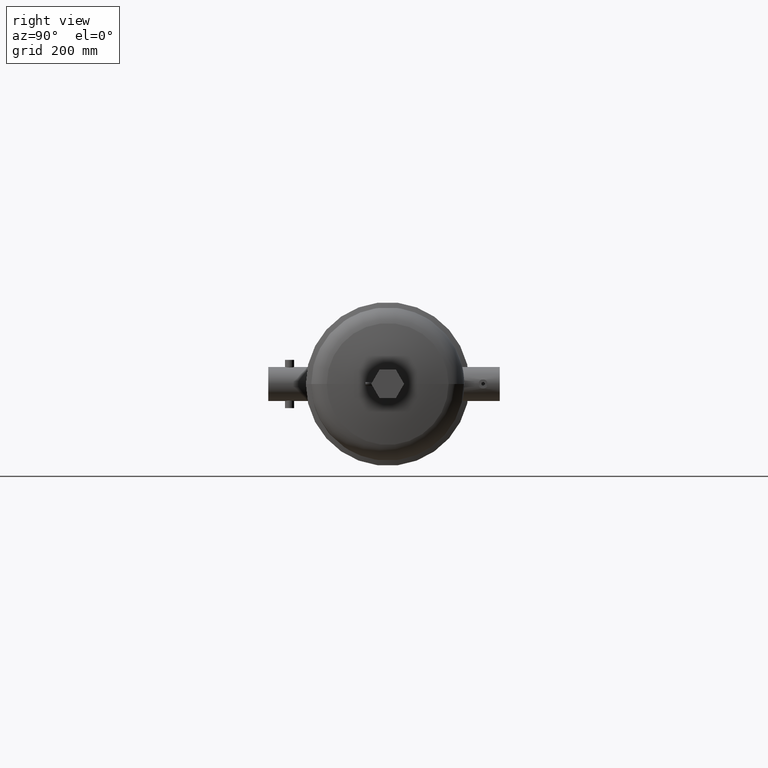
[diagram: clean part render]
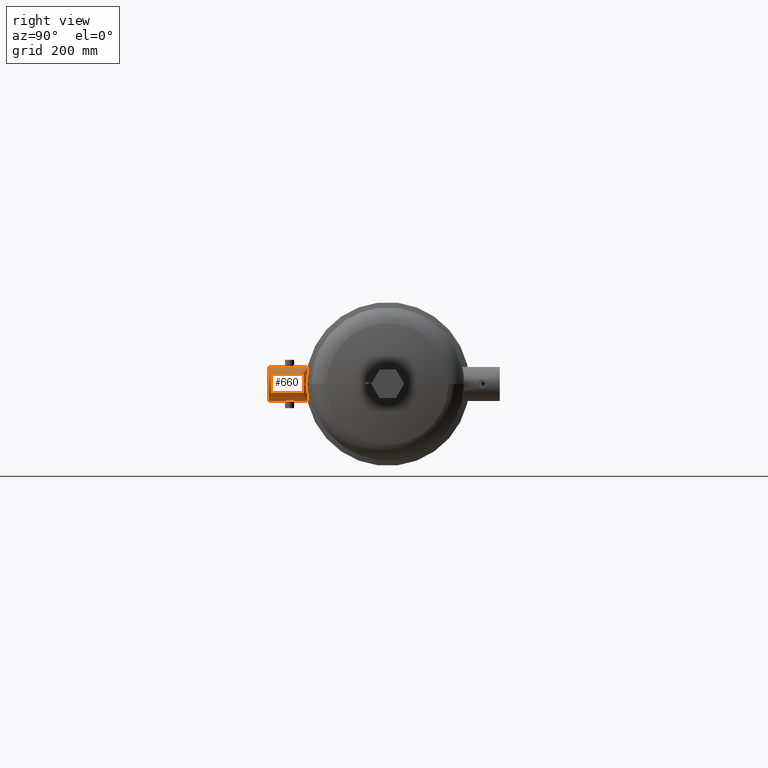
[diagram: same view with one face highlighted and labeled with its STEP entity id]
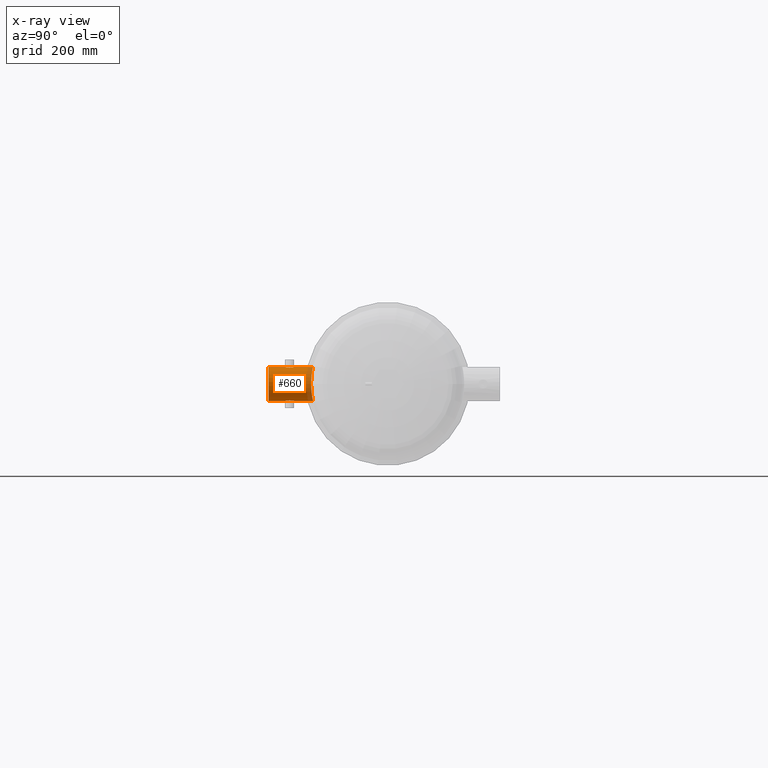
[diagram: x-ray of the same camera — body ghosted, the highlighted face saturated]
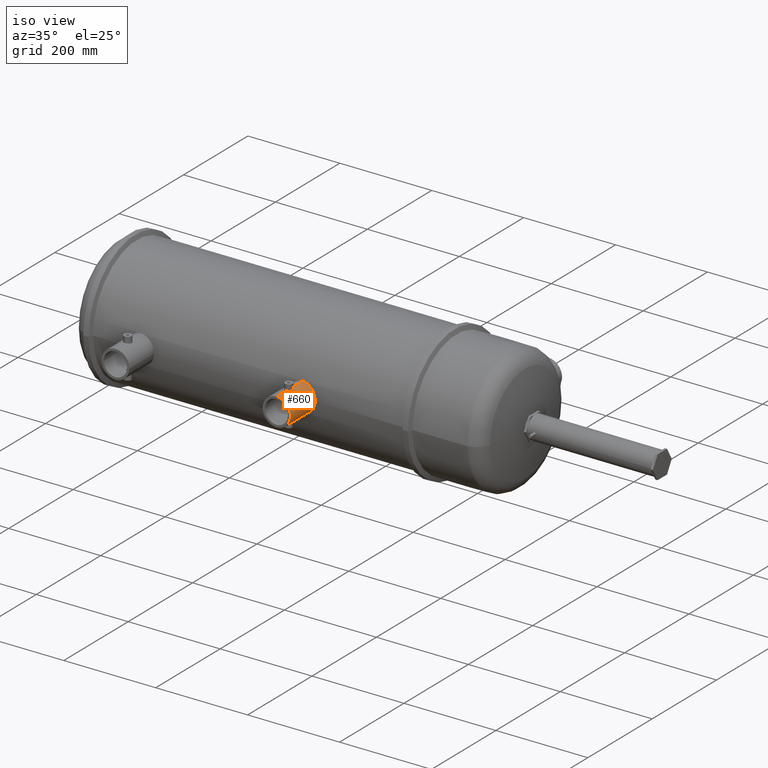
[diagram: same view with one face highlighted and labeled with its STEP entity id]
A machine part, right view. The second image highlights one B-rep face of the part: STEP entity #660.
The next image is the same camera in x-ray: the body ghosted, the highlighted face saturated — about 11% of this face is hidden behind the body in this view.
A second angle (iso view) of the same face is appended — the face is thin or edge-on in the first view.
In plain terms, the highlighted cylindrical surface (edge-blend (fillet) strip) has radius 30.4 mm, axis along (-0, 1, -0).
Its self-contained STEP definition (entity closure, byte-faithful):
#18 = CARTESIAN_POINT ( 'NONE',  ( 20.30267497385542400, -5.234978669850942600, -1.189228997308080100 ) ) ;
#20 = CARTESIAN_POINT ( 'NONE',  ( 20.14646178023718900, -8.380000000000000800, -1.196850393700786800 ) ) ;
#57 = CARTESIAN_POINT ( 'NONE',  ( 20.23034213481459200, -6.568557721539487000, -1.194086903295467700 ) ) ;
#63 = B_SPLINE_CURVE_WITH_KNOTS ( 'NONE', 3,
 ( #3464, #1203, #4359, #4377, #3050, #716, #4898, #899, #1264, #4960, #4871, #5339, #2632, #5804, #3092, #5366, #399, #5387, #857, #4445, #3549, #4035, #1742, #2195 ),
 .UNSPECIFIED., .F., .F.,
 ( 4, 2, 2, 2, 2, 2, 2, 2, 2, 2, 2, 4 ),
 ( 0.02567718149975968900, 0.02728178340706103500, 0.02888638531436238400, 0.02968868626801305900, 0.03049098722166373300, 0.03209558912896496400, 0.03289789008261558000, 0.03370019103626620300, 0.03530479294356771200, 0.03690939485086921400, 0.03771169580451996100, 0.03851399675817070900 ),
 .UNSPECIFIED. ) ;
#95 = CARTESIAN_POINT ( 'NONE',  ( 20.46412916512038600, -6.827208400453592700, -1.153925009145352600 ) ) ;
#166 = DIRECTION ( 'NONE',  ( 0.0000000000000000000, 0.0000000000000000000, 1.000000000000000000 ) ) ;
#208 = CARTESIAN_POINT ( 'NONE',  ( 21.11861795262816700, -5.322680822778227000, 0.6983892442578063500 ) ) ;
#255 = CARTESIAN_POINT ( 'NONE',  ( 20.28957382872573600, -7.169052661135340000, 1.188424619474727000 ) ) ;
#265 = CARTESIAN_POINT ( 'NONE',  ( 20.43503884487746800, -6.737096094357215600, 1.161550829749654800 ) ) ;
#270 = CARTESIAN_POINT ( 'NONE',  ( 20.42574505096249700, -7.041357026553663800, 1.163871702754222500 ) ) ;
#324 = CARTESIAN_POINT ( 'NONE',  ( 20.38138088876072400, -6.659746847423960500, 1.173593366233573100 ) ) ;
#340 = CARTESIAN_POINT ( 'NONE',  ( 20.28926239001419400, -6.590798586748317900, 1.188461090311276700 ) ) ;
#399 = CARTESIAN_POINT ( 'NONE',  ( 20.28963624669337300, -7.169032268674192700, -1.188419336677621900 ) ) ;
#417 = EDGE_CURVE ( 'NONE', #3520, #3433, #914, .T. ) ;
#418 = CARTESIAN_POINT ( 'NONE',  ( 21.13042735282109100, -5.324850754475957800, -0.6816483619526521000 ) ) ;
#419 = VERTEX_POINT ( 'NONE', #847 ) ;
#430 = ORIENTED_EDGE ( 'NONE', *, *, #1953, .T. ) ;
#434 = CARTESIAN_POINT ( 'NONE',  ( 20.87717697342599600, -5.283556944324895500, -0.9511561901910999800 ) ) ;
#455 = CARTESIAN_POINT ( 'NONE',  ( 20.41869885264316100, -5.240255615862095900, -1.165645067144453200 ) ) ;
#464 = B_SPLINE_CURVE_WITH_KNOTS ( 'NONE', 3,
 ( #1422, #4079, #4526, #57, #3649, #4116, #943, #3237, #5043, #5473, #1404, #976, #4101, #4556, #1384, #1839, #5007, #5506, #1861, #95, #526, #3161, #4131, #4577 ),
 .UNSPECIFIED., .F., .F.,
 ( 4, 2, 2, 2, 2, 2, 2, 2, 2, 2, 2, 4 ),
 ( 0.01284200239088143800, 0.01444639977949086600, 0.01605079716810029300, 0.01685299586240516000, 0.01765519455671002400, 0.01845739325101489200, 0.01925959194531975600, 0.02086398933392977600, 0.02246838672253979500, 0.02407278411114981800, 0.02487498280545475200, 0.02567718149975968900 ),
 .UNSPECIFIED. ) ;
#526 = CARTESIAN_POINT ( 'NONE',  ( 20.46571117224566900, -6.837809063221903300, -1.153486827789330200 ) ) ;
#584 = CARTESIAN_POINT ( 'NONE',  ( 20.45644482302516900, -5.242249987839469000, 1.156686122263862200 ) ) ;
#600 = CARTESIAN_POINT ( 'NONE',  ( 21.22148006781654000, -5.342344859803780800, 0.5318484861100810600 ) ) ;
#604 = B_SPLINE_CURVE_WITH_KNOTS ( 'NONE', 3,
 ( #2949, #3532, #818, #3985, #3492, #1266, #4900, #5370, #2656, #5829, #3119, #418, #1768, #4923, #2219, #5390, #783, #2692, #434, #883, #3592, #4041, #2239, #1790, #1341, #4060, #4491, #4945, #1323, #455, #5410, #18, #3157, #3612 ),
 .UNSPECIFIED., .F., .F.,
 ( 4, 2, 2, 2, 2, 2, 2, 2, 2, 2, 2, 2, 2, 2, 2, 2, 4 ),
 ( 0.0000000000000000000, 0.005960542230142185800, 0.008940813345213278700, 0.01043094890274887300, 0.01192108446028446700, 0.01788162669042668900, 0.01937176224796216200, 0.02086189780549763500, 0.02384216892056879900, 0.02980271115071111600, 0.03129284670824676600, 0.03278298226578241200, 0.03576325338085398200, 0.03874352449592555900, 0.04023366005346150400, 0.04172379561099744800, 0.04768433784114122600 ),
 .UNSPECIFIED. ) ;
#620 = CARTESIAN_POINT ( 'NONE',  ( 21.01989743351668600, -5.305492023519797800, 0.8191888919053246200 ) ) ;
#639 = EDGE_CURVE ( 'NONE', #4352, #768, #2416, .T. ) ;
#660 = ADVANCED_FACE ( 'NONE', ( #2224 ), #4833, .T. ) ;
#664 = CARTESIAN_POINT ( 'NONE',  ( 20.16783905554524400, -7.201850393700789600, 1.196850393700786200 ) ) ;
#702 = CARTESIAN_POINT ( 'NONE',  ( 20.15699155481434300, -6.558149606299212000, 1.196850393700786800 ) ) ;
#716 = CARTESIAN_POINT ( 'NONE',  ( 20.43967863885932300, -7.013122939632118000, -1.160384421762383800 ) ) ;
#724 = CARTESIAN_POINT ( 'NONE',  ( 20.25043642003168600, -6.574682549042706500, 1.192485241676455500 ) ) ;
#746 = CARTESIAN_POINT ( 'NONE',  ( 20.40183095878811400, -6.683825620592221700, 1.169309119435434600 ) ) ;
#766 = CARTESIAN_POINT ( 'NONE',  ( 21.34331217393797400, -5.368251035232424900, 0.0000000000000000000 ) ) ;
#767 = CARTESIAN_POINT ( 'NONE',  ( 20.16753543008093500, -6.558665062731043000, 1.196711461262761000 ) ) ;
#768 = VERTEX_POINT ( 'NONE', #766 ) ;
#783 = CARTESIAN_POINT ( 'NONE',  ( 21.01989131365047600, -5.305490786052706300, -0.8191983656207001400 ) ) ;
#818 = CARTESIAN_POINT ( 'NONE',  ( 21.33549608641648000, -5.366494215406592400, -0.1573589102271542600 ) ) ;
#837 = EDGE_CURVE ( 'NONE', #768, #4770, #604, .T. ) ;
#847 = CARTESIAN_POINT ( 'NONE',  ( 20.14646178023718900, -8.380000000000000800, 1.196850393700786800 ) ) ;
#857 = CARTESIAN_POINT ( 'NONE',  ( 20.23021388395153500, -7.191472468845994100, -1.194094832357367900 ) ) ;
#883 = CARTESIAN_POINT ( 'NONE',  ( 20.79541310023561700, -5.273251761401556200, -1.005833010294777500 ) ) ;
#891 = DIRECTION ( 'NONE',  ( -0.0000000000000000000, 1.000000000000000000, -0.0000000000000000000 ) ) ;
#899 = CARTESIAN_POINT ( 'NONE',  ( 20.42519428929582800, -7.041268778481408800, -1.163952509977382200 ) ) ;
#914 = B_SPLINE_CURVE_WITH_KNOTS ( 'NONE', 3,
 ( #5184, #664, #1544, #4694, #5624, #4275, #2916, #255, #3380, #1567, #3394, #1136, #4293, #4739, #2957, #270, #3414, #3104, #5734, #4863, #3518, #5754, #5270, #3043 ),
 .UNSPECIFIED., .F., .F.,
 ( 4, 2, 2, 2, 2, 2, 2, 2, 2, 2, 2, 4 ),
 ( 0.0000000000000000000, 0.001605282314302298400, 0.002407923471453602000, 0.003210564628604905900, 0.004815846942907818200, 0.005618488100059298100, 0.006421129257210777200, 0.008026411571514026000, 0.009631693885817272200, 0.01043433504296885900, 0.01123697620012044400, 0.01284225851442361400 ),
 .UNSPECIFIED. ) ;
#943 = CARTESIAN_POINT ( 'NONE',  ( 20.28938133846733300, -6.591430580348284000, -1.188323261585958000 ) ) ;
#947 = CARTESIAN_POINT ( 'NONE',  ( 20.56892737537739200, -5.250200187789792100, 1.119982121431812600 ) ) ;
#976 = CARTESIAN_POINT ( 'NONE',  ( 20.35887925180344400, -6.637973893793787100, -1.177878353501536700 ) ) ;
#981 = CARTESIAN_POINT ( 'NONE',  ( 20.30324904070974100, -5.235004604428955800, 1.189113119929174900 ) ) ;
#1049 = EDGE_LOOP ( 'NONE', ( #430, #5271, #3982, #3508, #4022, #2766, #3172, #5570, #1864, #4223, #1738 ) ) ;
#1052 = CARTESIAN_POINT ( 'NONE',  ( 21.30222816600492000, -5.359244614724526700, 0.3115207655409570300 ) ) ;
#1099 = CARTESIAN_POINT ( 'NONE',  ( 20.14646178023718900, -7.201850393700788700, -1.196850393700786800 ) ) ;
#1109 = CARTESIAN_POINT ( 'NONE',  ( 21.34331217393797100, -5.368251035232424900, 0.07930491497186011000 ) ) ;
#1136 = CARTESIAN_POINT ( 'NONE',  ( 20.35902720400813600, -7.121898220304158800, 1.177851899791539300 ) ) ;
#1149 = EDGE_CURVE ( 'NONE', #4206, #1450, #63, .T. ) ;
#1160 = DIRECTION ( 'NONE',  ( -0.0000000000000000000, 1.000000000000000000, -0.0000000000000000000 ) ) ;
#1171 = CARTESIAN_POINT ( 'NONE',  ( 20.42509560516276000, -6.718564439816671700, 1.163976049554222400 ) ) ;
#1203 = CARTESIAN_POINT ( 'NONE',  ( 20.46831217393797800, -6.901061815007571100, -1.152763284016443700 ) ) ;
#1264 = CARTESIAN_POINT ( 'NONE',  ( 20.41972583356871200, -7.050366030398415700, -1.165252555601107300 ) ) ;
#1266 = CARTESIAN_POINT ( 'NONE',  ( 21.28585846822836900, -5.355739564668230200, -0.3668973219569238200 ) ) ;
#1323 = CARTESIAN_POINT ( 'NONE',  ( 20.45703563367988000, -5.242385681921823500, -1.156021335317012600 ) ) ;
#1341 = CARTESIAN_POINT ( 'NONE',  ( 20.64106441455124900, -5.256402689435967400, -1.090567589013728100 ) ) ;
#1384 = CARTESIAN_POINT ( 'NONE',  ( 20.40229006015351500, -6.683588580835066600, -1.169249909877855500 ) ) ;
#1404 = CARTESIAN_POINT ( 'NONE',  ( 20.34266083982619800, -6.624649755574172800, -1.180688158190163200 ) ) ;
#1422 = CARTESIAN_POINT ( 'NONE',  ( 20.14646178023718900, -6.558149606299212800, -1.196850393700786800 ) ) ;
#1427 = CARTESIAN_POINT ( 'NONE',  ( 20.67745853364357000, -5.259580338480863500, 1.075455758541094700 ) ) ;
#1450 = VERTEX_POINT ( 'NONE', #1099 ) ;
#1474 = CARTESIAN_POINT ( 'NONE',  ( 21.33550657205138300, -5.366496152617634700, 0.1575296930776905700 ) ) ;
#1496 = CARTESIAN_POINT ( 'NONE',  ( 21.08318138053628100, -5.316325201343868700, 0.7452431268776933400 ) ) ;
#1516 = CARTESIAN_POINT ( 'NONE',  ( 21.12999773239430500, -5.324771274659510400, 0.6822717990872144700 ) ) ;
#1544 = CARTESIAN_POINT ( 'NONE',  ( 20.18883982781829900, -7.199741897958120700, 1.196278506953133900 ) ) ;
#1567 = CARTESIAN_POINT ( 'NONE',  ( 20.33421913372585600, -7.141620369343415900, 1.182064297409139100 ) ) ;
#1624 = CARTESIAN_POINT ( 'NONE',  ( 20.14646178023718900, -6.558149606299212800, 1.196850393700786800 ) ) ;
#1642 = CARTESIAN_POINT ( 'NONE',  ( 20.14646178023718900, 0.0000000000000000000, -1.196850393700786800 ) ) ;
#1738 = ORIENTED_EDGE ( 'NONE', *, *, #5525, .F. ) ;
#1742 = CARTESIAN_POINT ( 'NONE',  ( 20.15707323667063000, -7.201850393700794100, -1.196850393700787300 ) ) ;
#1768 = CARTESIAN_POINT ( 'NONE',  ( 21.11914342736664800, -5.322776732833550500, -0.6976583898845124500 ) ) ;
#1789 = VECTOR ( 'NONE', #1160, 39.37007874015748100 ) ;
#1790 = CARTESIAN_POINT ( 'NONE',  ( 20.67629453886113200, -5.259843027890381600, -1.073897246922515000 ) ) ;
#1839 = CARTESIAN_POINT ( 'NONE',  ( 20.42556873655067700, -6.718368130244202900, -1.163912697538670900 ) ) ;
#1845 = CARTESIAN_POINT ( 'NONE',  ( 20.84388587186285200, -5.279358282931522900, 0.9734402259026468900 ) ) ;
#1861 = CARTESIAN_POINT ( 'NONE',  ( 20.45790289919942100, -6.796098371599237400, -1.155627020847516100 ) ) ;
#1864 = ORIENTED_EDGE ( 'NONE', *, *, #3760, .F. ) ;
#1953 = EDGE_CURVE ( 'NONE', #419, #3960, #4256, .T. ) ;
#1957 = CARTESIAN_POINT ( 'NONE',  ( 21.31621825021854000, -5.362277935327468500, 0.2539836251679794500 ) ) ;
#1976 = CARTESIAN_POINT ( 'NONE',  ( 20.93609541495386500, -5.292334797267721500, 0.9002545064773362900 ) ) ;
#1999 = CARTESIAN_POINT ( 'NONE',  ( 20.14646178023718900, -6.558149606299212800, -1.196850393700786800 ) ) ;
#2099 = CARTESIAN_POINT ( 'NONE',  ( 20.30811615317000100, -6.600905774742977300, 1.186013548036943800 ) ) ;
#2115 = CARTESIAN_POINT ( 'NONE',  ( 20.14646178023718900, -6.558149606299212800, 1.196850393700786800 ) ) ;
#2195 = CARTESIAN_POINT ( 'NONE',  ( 20.14646178023718900, -7.201850393700788700, -1.196850393700786800 ) ) ;
#2219 = CARTESIAN_POINT ( 'NONE',  ( 21.08355692608841600, -5.316391145387439300, -0.7447746826625419900 ) ) ;
#2224 = FACE_OUTER_BOUND ( 'NONE', #1049, .T. ) ;
#2239 = CARTESIAN_POINT ( 'NONE',  ( 20.72798897783316700, -5.265381560053755000, -1.046259422608541800 ) ) ;
#2299 = CARTESIAN_POINT ( 'NONE',  ( 20.87565793828477100, -5.283660843498650700, 0.9498696840078932900 ) ) ;
#2334 = CARTESIAN_POINT ( 'NONE',  ( 20.58720116444671800, -5.251702843807398000, 1.112915830643174300 ) ) ;
#2350 = CARTESIAN_POINT ( 'NONE',  ( 20.14646178023718900, 0.0000000000000000000, 0.0000000000000000000 ) ) ;
#2412 = VECTOR ( 'NONE', #3890, 39.37007874015748100 ) ;
#2416 = B_SPLINE_CURVE_WITH_KNOTS ( 'NONE', 3,
 ( #5544, #3679, #981, #2825, #584, #4153, #4597, #947, #2334, #1427, #4103, #1845, #2299, #1976, #4203, #620, #2927, #1496, #4648, #208, #1516, #2474, #600, #4631, #5639, #4669, #1052, #2431, #1957, #1474, #1109, #5136 ),
 .UNSPECIFIED., .F., .F.,
 ( 4, 2, 2, 2, 2, 2, 2, 2, 2, 2, 2, 2, 2, 2, 2, 4 ),
 ( 0.1430163282665264900, 0.1489721874126156400, 0.1519501169856602200, 0.1534390817721825200, 0.1549280465587048200, 0.1608839057047942700, 0.1638618352778388700, 0.1668397648508834800, 0.1698176944239280500, 0.1713066592104504600, 0.1727956239969728700, 0.1787514831430626300, 0.1817294127161075400, 0.1832183775026299800, 0.1847073422891524200, 0.1906632014352420400 ),
 .UNSPECIFIED. ) ;
#2431 = CARTESIAN_POINT ( 'NONE',  ( 21.31187960085991800, -5.361332996889768100, 0.2732076668192129900 ) ) ;
#2446 = DIRECTION ( 'NONE',  ( -0.0000000000000000000, 1.000000000000000000, -0.0000000000000000000 ) ) ;
#2474 = CARTESIAN_POINT ( 'NONE',  ( 21.18471990649060300, -5.334981070294603900, 0.6005510153081257100 ) ) ;
#2557 = CARTESIAN_POINT ( 'NONE',  ( 20.45178645825272700, -6.776018291798259000, 1.157280422597713100 ) ) ;
#2632 = CARTESIAN_POINT ( 'NONE',  ( 20.35883126698582800, -7.122069549773933700, -1.177887188525133000 ) ) ;
#2635 = EDGE_CURVE ( 'NONE', #3703, #4206, #464, .T. ) ;
#2656 = CARTESIAN_POINT ( 'NONE',  ( 21.25918710163650300, -5.350130281458850100, -0.4412230569833939200 ) ) ;
#2692 = CARTESIAN_POINT ( 'NONE',  ( 20.93730464228196200, -5.292320752643710200, -0.9017069485949358300 ) ) ;
#2763 = VECTOR ( 'NONE', #5721, 39.37007874015748100 ) ;
#2766 = ORIENTED_EDGE ( 'NONE', *, *, #837, .F. ) ;
#2767 = AXIS2_PLACEMENT_3D ( 'NONE', #4502, #891, #5401 ) ;
#2825 = CARTESIAN_POINT ( 'NONE',  ( 20.41835244524018100, -5.240132478017382100, 1.166214679730571000 ) ) ;
#2903 = LINE ( 'NONE', #3360, #1789 ) ;
#2916 = CARTESIAN_POINT ( 'NONE',  ( 20.26036502914353200, -7.181205796201863800, 1.191458237712903500 ) ) ;
#2927 = CARTESIAN_POINT ( 'NONE',  ( 21.04602839329567100, -5.309866994982126400, 0.7904119337010352400 ) ) ;
#2949 = CARTESIAN_POINT ( 'NONE',  ( 21.34331217393797400, -5.368251035232424900, 0.0000000000000000000 ) ) ;
#2951 = CARTESIAN_POINT ( 'NONE',  ( 20.45790498777320500, -6.796123346096464100, 1.155626416959878700 ) ) ;
#2957 = CARTESIAN_POINT ( 'NONE',  ( 20.40222098519126000, -7.076525989137626200, 1.169266314771915100 ) ) ;
#2971 = CARTESIAN_POINT ( 'NONE',  ( 20.46831217393798100, -6.858902997397674300, 1.152763284016443700 ) ) ;
#2989 = EDGE_CURVE ( 'NONE', #3960, #1450, #3907, .T. ) ;
#3038 = CARTESIAN_POINT ( 'NONE',  ( 20.43960617467461200, -6.746710992143444100, 1.160402859600714300 ) ) ;
#3043 = CARTESIAN_POINT ( 'NONE',  ( 20.46831217393797800, -6.880000000000000800, 1.152763284016443700 ) ) ;
#3050 = CARTESIAN_POINT ( 'NONE',  ( 20.45175433519416000, -6.984042304174354700, -1.157288378486054400 ) ) ;
#3092 = CARTESIAN_POINT ( 'NONE',  ( 20.33414896434728200, -7.141668534342111100, -1.182075104049553000 ) ) ;
#3104 = CARTESIAN_POINT ( 'NONE',  ( 20.44772336222849400, -6.993749297549471500, 1.158321858499260300 ) ) ;
#3119 = CARTESIAN_POINT ( 'NONE',  ( 21.18474932990761400, -5.334989321941430200, -0.6004330010940928100 ) ) ;
#3157 = CARTESIAN_POINT ( 'NONE',  ( 20.22482318247096300, -5.233218864319112200, -1.196850393700786800 ) ) ;
#3161 = CARTESIAN_POINT ( 'NONE',  ( 20.46779673849278700, -6.858926460978858900, -1.152907576861282600 ) ) ;
#3172 = ORIENTED_EDGE ( 'NONE', *, *, #639, .F. ) ;
#3222 = EDGE_CURVE ( 'NONE', #3703, #4770, #2903, .T. ) ;
#3237 = CARTESIAN_POINT ( 'NONE',  ( 20.30791752569302800, -6.601377760503353000, -1.185946970319621700 ) ) ;
#3241 = DIRECTION ( 'NONE',  ( -0.0000000000000000000, 1.000000000000000000, -0.0000000000000000000 ) ) ;
#3259 = VECTOR ( 'NONE', #2446, 39.37007874015748100 ) ;
#3327 = CARTESIAN_POINT ( 'NONE',  ( 20.14646178023718900, 0.0000000000000000000, 1.196850393700786800 ) ) ;
#3360 = CARTESIAN_POINT ( 'NONE',  ( 20.14646178023718900, 0.0000000000000000000, -1.196850393700786800 ) ) ;
#3380 = CARTESIAN_POINT ( 'NONE',  ( 20.30802830621162500, -7.159151205776203700, 1.186026547330660400 ) ) ;
#3394 = CARTESIAN_POINT ( 'NONE',  ( 20.34274223683596000, -7.135289621266943900, 1.180674866160382800 ) ) ;
#3409 = CARTESIAN_POINT ( 'NONE',  ( 20.19925319019769800, -6.562332530115778400, 1.195730656108635200 ) ) ;
#3414 = CARTESIAN_POINT ( 'NONE',  ( 20.43566999545706900, -7.022777289443657100, 1.161412195643079000 ) ) ;
#3428 = CARTESIAN_POINT ( 'NONE',  ( 20.34290023631524800, -6.624192150562599600, 1.180750695697085200 ) ) ;
#3433 = VERTEX_POINT ( 'NONE', #4909 ) ;
#3450 = CARTESIAN_POINT ( 'NONE',  ( 20.35904460070422700, -6.637431923487588900, 1.177917423678274100 ) ) ;
#3464 = CARTESIAN_POINT ( 'NONE',  ( 20.46831217393797800, -6.880000000000000800, -1.152763284016443700 ) ) ;
#3492 = CARTESIAN_POINT ( 'NONE',  ( 21.30303455708512300, -5.359408870717360600, -0.3103878976485539600 ) ) ;
#3493 = CARTESIAN_POINT ( 'NONE',  ( 20.18865200284165700, -6.560750527417870800, 1.196153169686881500 ) ) ;
#3508 = ORIENTED_EDGE ( 'NONE', *, *, #2635, .F. ) ;
#3518 = CARTESIAN_POINT ( 'NONE',  ( 20.46004025057570500, -6.953271493881883800, 1.155042865480186100 ) ) ;
#3520 = VERTEX_POINT ( 'NONE', #3580 ) ;
#3532 = CARTESIAN_POINT ( 'NONE',  ( 21.34331217393797800, -5.368251035232424900, -0.07936727232006743300 ) ) ;
#3549 = CARTESIAN_POINT ( 'NONE',  ( 20.18887436774906900, -7.199219489600575500, -1.196145162535986900 ) ) ;
#3580 = CARTESIAN_POINT ( 'NONE',  ( 20.14646178023718900, -7.201850393700788700, 1.196850393700786800 ) ) ;
#3592 = CARTESIAN_POINT ( 'NONE',  ( 20.77871780649118700, -5.271222911714966500, -1.016409814980364900 ) ) ;
#3612 = CARTESIAN_POINT ( 'NONE',  ( 20.14646178023718900, -5.233218864319113100, -1.196850393700786800 ) ) ;
#3631 = LINE ( 'NONE', #3847, #2412 ) ;
#3649 = CARTESIAN_POINT ( 'NONE',  ( 20.25045028735418000, -6.574677324112640200, -1.192486167805157000 ) ) ;
#3679 = CARTESIAN_POINT ( 'NONE',  ( 20.22541931606412300, -5.233218864319112200, 1.196850393700786600 ) ) ;
#3703 = VERTEX_POINT ( 'NONE', #1999 ) ;
#3760 = EDGE_CURVE ( 'NONE', #3433, #5086, #4564, .T. ) ;
#3847 = CARTESIAN_POINT ( 'NONE',  ( 20.14646178023718900, 0.0000000000000000000, 1.196850393700786800 ) ) ;
#3881 = CARTESIAN_POINT ( 'NONE',  ( 20.40806619187291900, -6.692223378418836100, 1.167925340934674800 ) ) ;
#3890 = DIRECTION ( 'NONE',  ( -0.0000000000000000000, 1.000000000000000000, -0.0000000000000000000 ) ) ;
#3907 = LINE ( 'NONE', #1642, #2763 ) ;
#3960 = VERTEX_POINT ( 'NONE', #20 ) ;
#3982 = ORIENTED_EDGE ( 'NONE', *, *, #1149, .F. ) ;
#3985 = CARTESIAN_POINT ( 'NONE',  ( 21.31256179371867500, -5.361478118893338700, -0.2723784301474028200 ) ) ;
#4022 = ORIENTED_EDGE ( 'NONE', *, *, #3222, .T. ) ;
#4035 = CARTESIAN_POINT ( 'NONE',  ( 20.16779037605635900, -7.201317601635341100, -1.196706801367018100 ) ) ;
#4041 = CARTESIAN_POINT ( 'NONE',  ( 20.74502832632043000, -5.267290741135510300, -1.036607295282497400 ) ) ;
#4060 = CARTESIAN_POINT ( 'NONE',  ( 20.56907548248298000, -5.250122112705162700, -1.120431653761947900 ) ) ;
#4079 = CARTESIAN_POINT ( 'NONE',  ( 20.16756078746502500, -6.558149606299212800, -1.196850393700786400 ) ) ;
#4101 = CARTESIAN_POINT ( 'NONE',  ( 20.36673862083766600, -6.645103059212016400, -1.176429506441545800 ) ) ;
#4103 = CARTESIAN_POINT ( 'NONE',  ( 20.74613932162452200, -5.267047131595116800, 1.038739235608049400 ) ) ;
#4116 = CARTESIAN_POINT ( 'NONE',  ( 20.27976341268633600, -6.586861264524344500, -1.189444425337917900 ) ) ;
#4131 = CARTESIAN_POINT ( 'NONE',  ( 20.46831217393797800, -6.869470434740302200, -1.152763284016443900 ) ) ;
#4153 = CARTESIAN_POINT ( 'NONE',  ( 20.51315907318373600, -5.246008429860805400, 1.139462290769401200 ) ) ;
#4203 = CARTESIAN_POINT ( 'NONE',  ( 20.96493090713787300, -5.296726030956471700, 0.8741101585906004800 ) ) ;
#4206 = VERTEX_POINT ( 'NONE', #4787 ) ;
#4223 = ORIENTED_EDGE ( 'NONE', *, *, #417, .F. ) ;
#4251 = EDGE_CURVE ( 'NONE', #5086, #4352, #3631, .T. ) ;
#4256 = CIRCLE ( 'NONE', #2767, 1.196850393700786800 ) ;
#4275 = CARTESIAN_POINT ( 'NONE',  ( 20.25031350121830400, -7.184819333324847800, 1.192379606480810800 ) ) ;
#4293 = CARTESIAN_POINT ( 'NONE',  ( 20.36678419306609600, -7.114850733132409600, 1.176420616035989800 ) ) ;
#4324 = CARTESIAN_POINT ( 'NONE',  ( 20.38850925641167300, -6.667606912147864100, 1.172139178351362800 ) ) ;
#4352 = VERTEX_POINT ( 'NONE', #5315 ) ;
#4359 = CARTESIAN_POINT ( 'NONE',  ( 20.46625788601982500, -6.922102906603885100, -1.153342983954445300 ) ) ;
#4377 = CARTESIAN_POINT ( 'NONE',  ( 20.45791020408357100, -6.963917121625091700, -1.155625141295519400 ) ) ;
#4445 = CARTESIAN_POINT ( 'NONE',  ( 20.19929666933919400, -7.197658007720555400, -1.195728164782724300 ) ) ;
#4491 = CARTESIAN_POINT ( 'NONE',  ( 20.53231672190699400, -5.247281732394174700, -1.133625458229323000 ) ) ;
#4502 = CARTESIAN_POINT ( 'NONE',  ( 20.14646178023718900, -8.380000000000000800, 0.0000000000000000000 ) ) ;
#4526 = CARTESIAN_POINT ( 'NONE',  ( 20.18899548885759300, -6.560276540854910200, -1.196273518112302800 ) ) ;
#4556 = CARTESIAN_POINT ( 'NONE',  ( 20.38905329420466500, -6.667443732718038700, -1.172104877206255900 ) ) ;
#4564 = B_SPLINE_CURVE_WITH_KNOTS ( 'NONE', 3,
 ( #5245, #2971, #4755, #2951, #2557, #3038, #265, #1171, #5265, #3881, #746, #4324, #324, #3450, #3428, #2099, #340, #724, #4794, #3409, #3493, #767, #702, #1624 ),
 .UNSPECIFIED., .F., .F.,
 ( 4, 2, 2, 2, 2, 2, 2, 2, 2, 2, 2, 4 ),
 ( 0.01284225851442361400, 0.01444665869059996500, 0.01605105886677631700, 0.01685325895486455500, 0.01765545904295279200, 0.01845765913104103300, 0.01925985921912927100, 0.02086425939530574600, 0.02246865957148222100, 0.02407305974765870000, 0.02487525983574676700, 0.02567745992383483500 ),
 .UNSPECIFIED. ) ;
#4577 = CARTESIAN_POINT ( 'NONE',  ( 20.46831217393797800, -6.880000000000000800, -1.152763284016443700 ) ) ;
#4597 = CARTESIAN_POINT ( 'NONE',  ( 20.53192671714579700, -5.247354310315958300, 1.133249272586620300 ) ) ;
#4631 = CARTESIAN_POINT ( 'NONE',  ( 21.26640799440981800, -5.351620815929973000, 0.4238990548922949000 ) ) ;
#4648 = CARTESIAN_POINT ( 'NONE',  ( 21.09522450453862100, -5.318460558132514400, 0.7298523501291255300 ) ) ;
#4669 = CARTESIAN_POINT ( 'NONE',  ( 21.29691144775958700, -5.358100384753382400, 0.3306114591192724200 ) ) ;
#4694 = CARTESIAN_POINT ( 'NONE',  ( 20.21980367515131500, -7.193559274222725900, 1.194645828856989400 ) ) ;
#4739 = CARTESIAN_POINT ( 'NONE',  ( 20.38893528841112600, -7.092675574168929100, 1.172127863693046800 ) ) ;
#4755 = CARTESIAN_POINT ( 'NONE',  ( 20.46618541495609000, -6.837468106172991600, 1.153362945693152200 ) ) ;
#4770 = VERTEX_POINT ( 'NONE', #5374 ) ;
#4787 = CARTESIAN_POINT ( 'NONE',  ( 20.46831217393797800, -6.880000000000000800, -1.152763284016443700 ) ) ;
#4794 = CARTESIAN_POINT ( 'NONE',  ( 20.23036791834955000, -6.568559877722765200, 1.194086305497348700 ) ) ;
#4833 = CYLINDRICAL_SURFACE ( 'NONE', #5567, 1.196850393700786800 ) ;
#4863 = CARTESIAN_POINT ( 'NONE',  ( 20.45742996381819600, -6.963654202910344500, 1.155750748163569400 ) ) ;
#4871 = CARTESIAN_POINT ( 'NONE',  ( 20.38895383382708800, -7.092663888464211500, -1.172124960105489300 ) ) ;
#4898 = CARTESIAN_POINT ( 'NONE',  ( 20.43517607951421800, -7.022630585471644000, -1.161516814549727700 ) ) ;
#4900 = CARTESIAN_POINT ( 'NONE',  ( 21.27963330961678100, -5.354418441567494500, -0.3856983536690556900 ) ) ;
#4909 = CARTESIAN_POINT ( 'NONE',  ( 20.46831217393797800, -6.880000000000000800, 1.152763284016443700 ) ) ;
#4923 = CARTESIAN_POINT ( 'NONE',  ( 21.09572224758605700, -5.318549287916665600, -0.7292059933704290200 ) ) ;
#4945 = CARTESIAN_POINT ( 'NONE',  ( 20.47600310192553500, -5.243544285051934900, -1.150755553914627000 ) ) ;
#4960 = CARTESIAN_POINT ( 'NONE',  ( 20.40220620852587500, -7.076527525427830600, -1.169268676312869200 ) ) ;
#5007 = CARTESIAN_POINT ( 'NONE',  ( 20.43567143239397100, -6.737216811459087600, -1.161411983304652800 ) ) ;
#5043 = CARTESIAN_POINT ( 'NONE',  ( 20.31689091658200000, -6.606776871072944400, -1.184686433812063300 ) ) ;
#5086 = VERTEX_POINT ( 'NONE', #2115 ) ;
#5136 = CARTESIAN_POINT ( 'NONE',  ( 21.34331217393797400, -5.368251035232424900, 0.0000000000000000000 ) ) ;
#5184 = CARTESIAN_POINT ( 'NONE',  ( 20.14646178023718900, -7.201850393700788700, 1.196850393700786800 ) ) ;
#5245 = CARTESIAN_POINT ( 'NONE',  ( 20.46831217393797800, -6.880000000000000800, 1.152763284016443700 ) ) ;
#5265 = CARTESIAN_POINT ( 'NONE',  ( 20.41969851282105400, -6.709592794264410500, 1.165258837405471300 ) ) ;
#5270 = CARTESIAN_POINT ( 'NONE',  ( 20.46831217393798100, -6.901108602246004900, 1.152763284016443900 ) ) ;
#5271 = ORIENTED_EDGE ( 'NONE', *, *, #2989, .T. ) ;
#5315 = CARTESIAN_POINT ( 'NONE',  ( 20.14646178023718900, -5.233218864319112200, 1.196850393700786800 ) ) ;
#5339 = CARTESIAN_POINT ( 'NONE',  ( 20.36669574319118300, -7.114935820775231800, -1.176437410055039200 ) ) ;
#5366 = CARTESIAN_POINT ( 'NONE',  ( 20.30809215187094500, -7.159106071172172600, -1.186016505379285300 ) ) ;
#5370 = CARTESIAN_POINT ( 'NONE',  ( 21.26629035735130200, -5.351612291077269200, -0.4228769240548642100 ) ) ;
#5374 = CARTESIAN_POINT ( 'NONE',  ( 20.14646178023718900, -5.233218864319113100, -1.196850393700786800 ) ) ;
#5387 = CARTESIAN_POINT ( 'NONE',  ( 20.25042192662243000, -7.185337302247076800, -1.192489721380377600 ) ) ;
#5390 = CARTESIAN_POINT ( 'NONE',  ( 21.04614304390460700, -5.309885619288764700, -0.7902958878500756500 ) ) ;
#5401 = DIRECTION ( 'NONE',  ( 0.0000000000000000000, 0.0000000000000000000, 1.000000000000000000 ) ) ;
#5410 = CARTESIAN_POINT ( 'NONE',  ( 20.39934261254586900, -5.239285677201905900, -1.169996038931294900 ) ) ;
#5473 = CARTESIAN_POINT ( 'NONE',  ( 20.33426257996138300, -6.618412866679404900, -1.182057061480764400 ) ) ;
#5506 = CARTESIAN_POINT ( 'NONE',  ( 20.45178192431308500, -6.776034277514046500, -1.157281135889531200 ) ) ;
#5525 = EDGE_CURVE ( 'NONE', #419, #3520, #5590, .T. ) ;
#5544 = CARTESIAN_POINT ( 'NONE',  ( 20.14646178023718900, -5.233218864319112200, 1.196850393700786800 ) ) ;
#5567 = AXIS2_PLACEMENT_3D ( 'NONE', #2350, #3241, #166 ) ;
#5570 = ORIENTED_EDGE ( 'NONE', *, *, #4251, .F. ) ;
#5590 = LINE ( 'NONE', #3327, #3259 ) ;
#5624 = CARTESIAN_POINT ( 'NONE',  ( 20.23003476072895200, -7.190991258480147900, 1.193972304048044800 ) ) ;
#5639 = CARTESIAN_POINT ( 'NONE',  ( 21.27966919716024600, -5.354418233406020600, 0.3870941140586157700 ) ) ;
#5721 = DIRECTION ( 'NONE',  ( -0.0000000000000000000, 1.000000000000000000, -0.0000000000000000000 ) ) ;
#5734 = CARTESIAN_POINT ( 'NONE',  ( 20.45127618384911000, -6.983862487043872100, 1.157388950366739600 ) ) ;
#5754 = CARTESIAN_POINT ( 'NONE',  ( 20.46625566611998400, -6.922065642489039700, 1.153343482433951500 ) ) ;
#5804 = CARTESIAN_POINT ( 'NONE',  ( 20.34256128882347500, -7.135427971377170700, -1.180704878674490900 ) ) ;
#5829 = CARTESIAN_POINT ( 'NONE',  ( 21.22155663035423600, -5.342359438693120100, -0.5317658508003536600 ) ) ;